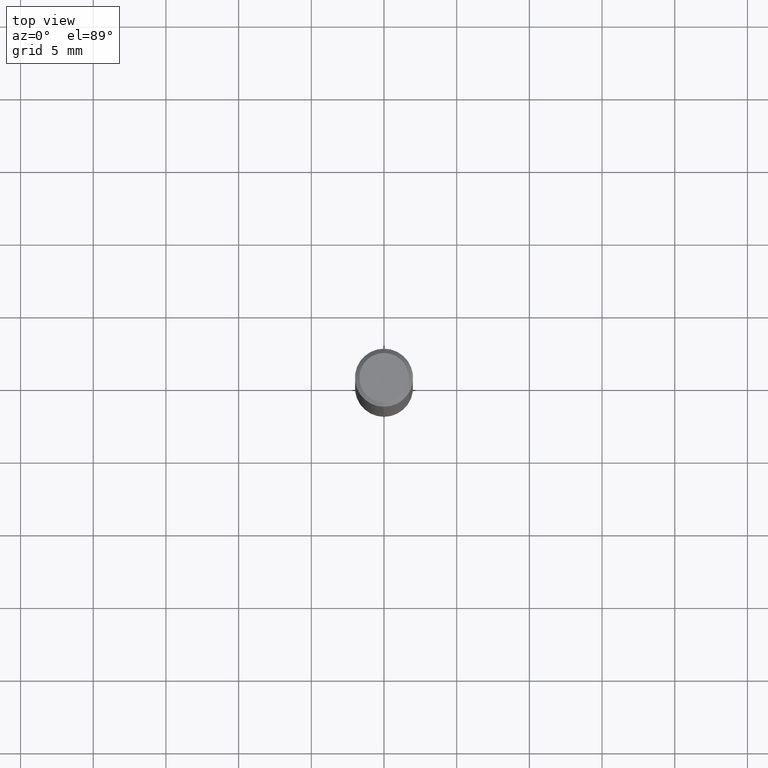
[diagram: clean part render]
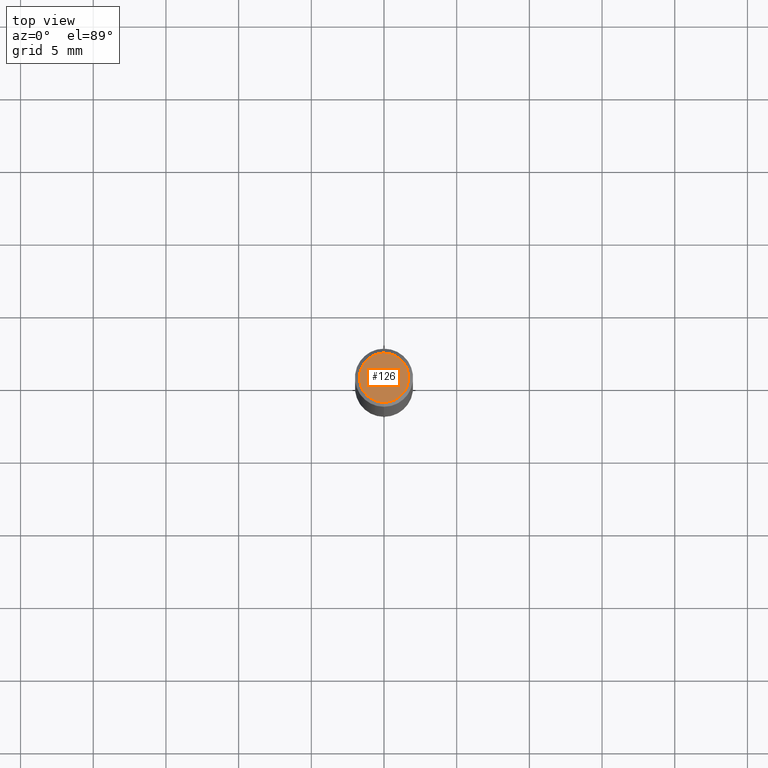
[diagram: same view with one face highlighted and labeled with its STEP entity id]
A machine part, top view. The second image highlights one B-rep face of the part: STEP entity #126.
In plain terms, the highlighted planar face has unit normal (-0, 0, 1).
Its self-contained STEP definition (entity closure, byte-faithful):
#102=EDGE_CURVE('',#142,#164,#227,.T.);
#126=ADVANCED_FACE('',(#255),#256,.T.);
#142=VERTEX_POINT('',#274);
#164=VERTEX_POINT('',#297);
#166=EDGE_CURVE('',#164,#142,#299,.T.);
#227=CIRCLE('',#364,1.7);
#255=FACE_OUTER_BOUND('',#400,.T.);
#256=PLANE('',#401);
#274=CARTESIAN_POINT('',(2.08183080149804E-016,-1.7,0.0));
#297=CARTESIAN_POINT('',(0.0,1.7,0.0));
#299=CIRCLE('',#456,1.7);
#364=AXIS2_PLACEMENT_3D('',#498,#499,#500);
#400=EDGE_LOOP('',(#542,#543));
#401=AXIS2_PLACEMENT_3D('',#544,#545,#546);
#456=AXIS2_PLACEMENT_3D('',#589,#590,#591);
#498=CARTESIAN_POINT('',(0.0,0.0,0.0));
#499=DIRECTION('',(0.0,0.0,-1.0));
#500=DIRECTION('',(0.0,1.0,0.0));
#542=ORIENTED_EDGE('',*,*,#166,.F.);
#543=ORIENTED_EDGE('',*,*,#102,.F.);
#544=CARTESIAN_POINT('',(0.0,0.85,0.0));
#545=DIRECTION('',(-0.0,0.0,1.0));
#546=DIRECTION('',(0.0,-1.0,0.0));
#589=CARTESIAN_POINT('',(0.0,0.0,0.0));
#590=DIRECTION('',(0.0,0.0,-1.0));
#591=DIRECTION('',(0.0,1.0,0.0));